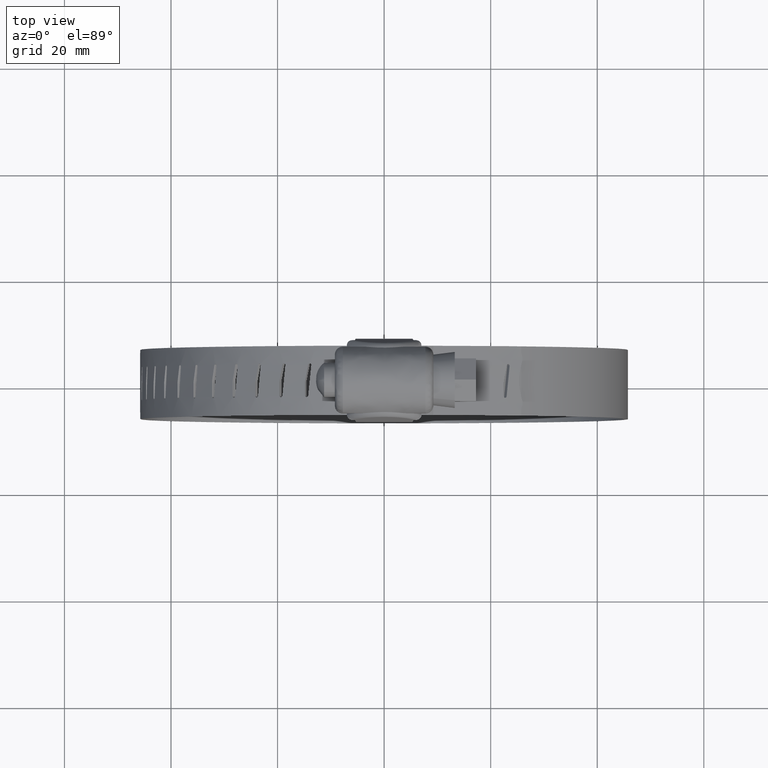
[diagram: clean part render]
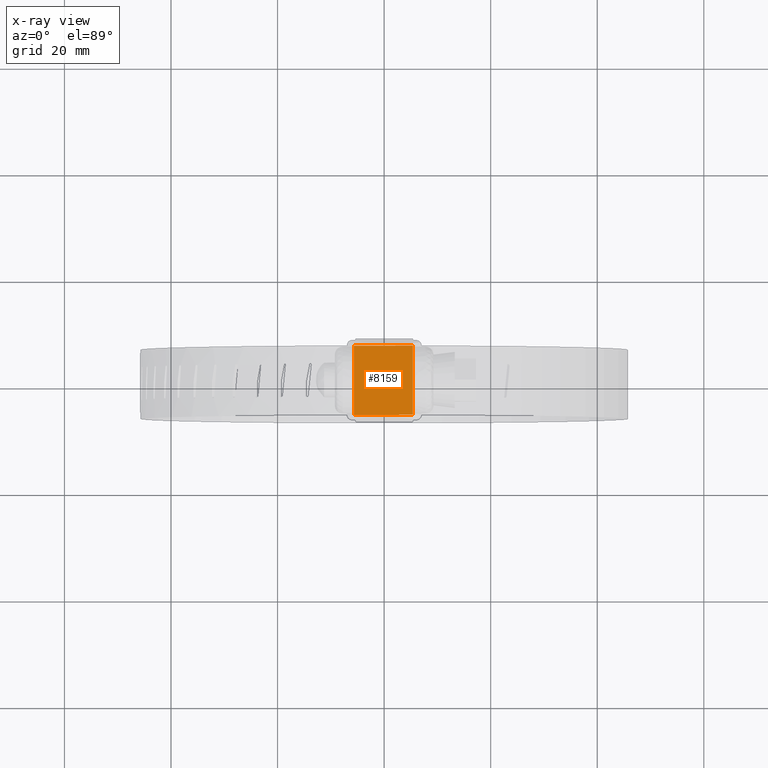
[diagram: x-ray — body ghosted, one internal face saturated and labeled with its STEP entity id]
A machine part, top view, then the same camera in x-ray: the body is ghosted and one INTERNAL B-rep face — a face not visible from any outside direction — is saturated and labeled: STEP entity #8159.
In plain terms, the highlighted face is a freeform B-spline surface patch.
Its self-contained STEP definition (entity closure, byte-faithful):
#8107=CARTESIAN_POINT('',(-5.672120477566950,6.499999999999840,11.144674022078300));
#8108=VERTEX_POINT('',#8107);
#8117=CARTESIAN_POINT('',(-5.672120477566950,-6.500000000000000,11.144674022078300));
#8118=VERTEX_POINT('',#8117);
#8124=CARTESIAN_POINT('',(-5.672120477566950,6.499999999999840,11.144674022078300));
#8125=CARTESIAN_POINT('',(-5.672120477566950,-6.500000000000000,11.144674022078300));
#8126=QUASI_UNIFORM_CURVE('',1,(#8124,#8125),.UNSPECIFIED.,.F.,.U.);
#8127=EDGE_CURVE('',#8108,#8118,#8126,.T.);
#8132=CARTESIAN_POINT('',(-6.225478926269568,-7.149349974803471,11.095039028302880));
#8133=CARTESIAN_POINT('',(5.959483738394543,-7.149349974803471,12.188002454509240));
#8134=CARTESIAN_POINT('',(-6.225478926269568,7.149350323490482,11.095039028302880));
#8135=CARTESIAN_POINT('',(5.959483738394543,7.149350323490482,12.188002454509240));
#8136=B_SPLINE_SURFACE_WITH_KNOTS('',1,1,((#8132,#8134),(#8133,#8135)),.UNSPECIFIED.,.F.,.F.,.U.,(2,2),(2,2),(0.0,12.233882629414220),(0.0,14.298700298293950),.UNSPECIFIED.);
#8137=CARTESIAN_POINT('',(5.406125091597460,-6.500000000000000,12.138367442965199));
#8138=VERTEX_POINT('',#8137);
#8139=CARTESIAN_POINT('',(5.406125091597460,-6.500000000000000,12.138367442965199));
#8140=CARTESIAN_POINT('',(-5.672120477566950,-6.500000000000000,11.144674022078300));
#8141=QUASI_UNIFORM_CURVE('',1,(#8139,#8140),.UNSPECIFIED.,.F.,.U.);
#8142=EDGE_CURVE('',#8138,#8118,#8141,.T.);
#8143=ORIENTED_EDGE('',*,*,#8142,.F.);
#8144=CARTESIAN_POINT('',(5.406125091597460,6.499999999999840,12.138367442965199));
#8145=VERTEX_POINT('',#8144);
#8146=CARTESIAN_POINT('',(5.406125091597460,6.499999999999840,12.138367442965199));
#8147=CARTESIAN_POINT('',(5.406125091597460,-6.500000000000000,12.138367442965199));
#8148=QUASI_UNIFORM_CURVE('',1,(#8146,#8147),.UNSPECIFIED.,.F.,.U.);
#8149=EDGE_CURVE('',#8145,#8138,#8148,.T.);
#8150=ORIENTED_EDGE('',*,*,#8149,.F.);
#8151=CARTESIAN_POINT('',(5.406125091597460,6.499999999999840,12.138367442965199));
#8152=CARTESIAN_POINT('',(-5.672120477566950,6.499999999999840,11.144674022078300));
#8153=QUASI_UNIFORM_CURVE('',1,(#8151,#8152),.UNSPECIFIED.,.F.,.U.);
#8154=EDGE_CURVE('',#8145,#8108,#8153,.T.);
#8155=ORIENTED_EDGE('',*,*,#8154,.T.);
#8156=ORIENTED_EDGE('',*,*,#8127,.T.);
#8157=EDGE_LOOP('',(#8143,#8150,#8155,#8156));
#8158=FACE_OUTER_BOUND('',#8157,.T.);
#8159=ADVANCED_FACE('',(#8158),#8136,.T.);